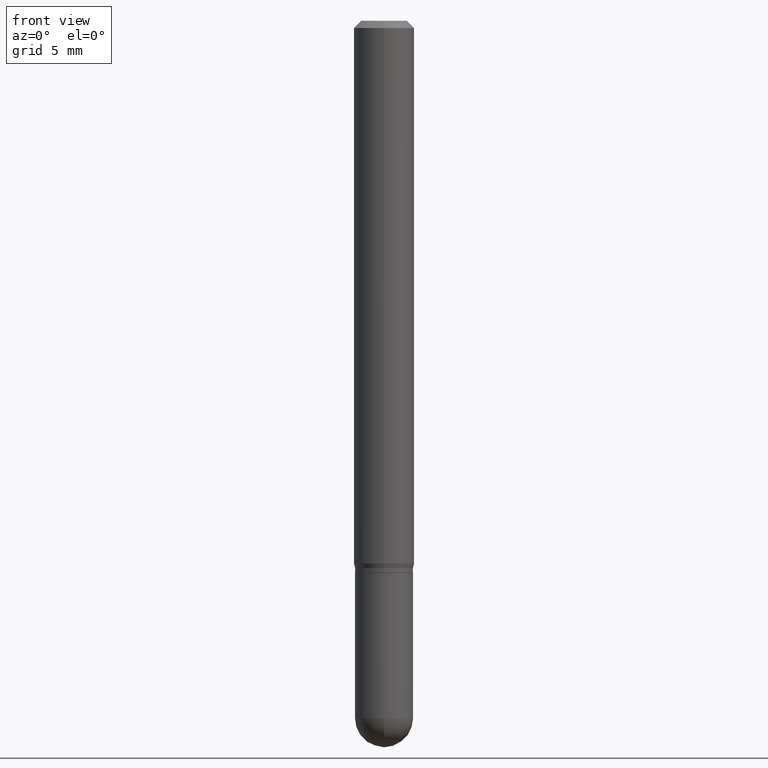
[diagram: clean part render]
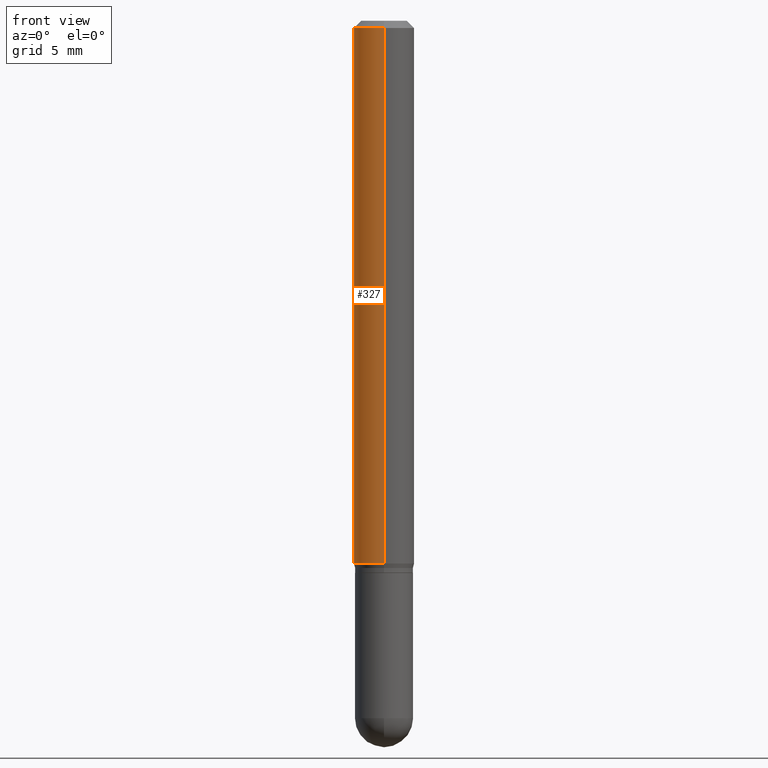
[diagram: same view with one face highlighted and labeled with its STEP entity id]
A machine part, front view. The second image highlights one B-rep face of the part: STEP entity #327.
In plain terms, the highlighted cylindrical surface (edge-blend (fillet) strip) has radius 1.5875 mm, axis along (-0, 0, 1).
Its self-contained STEP definition (entity closure, byte-faithful):
#2 = VERTEX_POINT ( 'NONE', #9 ) ;
#9 = CARTESIAN_POINT ( 'NONE',  ( -4.364351673553912750E-16, -0.06250000000000005551, -0.01499999999999984852 ) ) ;
#10 = CARTESIAN_POINT ( 'NONE',  ( -4.364351673553916201E-16, -0.06250000000000000000, 2.182223764768282415E-16 ) ) ;
#19 = DIRECTION ( 'NONE',  ( -6.982962677686265922E-15, -1.000000000000000000, 3.491558023629251863E-15 ) ) ;
#24 = CARTESIAN_POINT ( 'NONE',  ( 3.668122886227822345E-31, -5.237337035443900549E-17, -0.01500000000000006710 ) ) ;
#25 = EDGE_CURVE ( 'NONE', #505, #2, #361, .T. ) ;
#29 = DIRECTION ( 'NONE',  ( -2.445415257485203862E-29, 3.491558023629251863E-15, 1.000000000000000000 ) ) ;
#31 = CARTESIAN_POINT ( 'NONE',  ( -4.364351673553640100E-16, -0.06250000000000388578, -1.120669872981078452 ) ) ;
#42 = EDGE_CURVE ( 'NONE', #473, #2, #133, .T. ) ;
#52 = EDGE_CURVE ( 'NONE', #359, #473, #369, .T. ) ;
#56 = AXIS2_PLACEMENT_3D ( 'NONE', #448, #376, #212 ) ;
#63 = DIRECTION ( 'NONE',  ( -6.982962677686265922E-15, -1.000000000000000000, 3.483106191921935554E-15 ) ) ;
#99 = AXIS2_PLACEMENT_3D ( 'NONE', #380, #29, #19 ) ;
#133 = CIRCLE ( 'NONE', #475, 0.06250000000000000000 ) ;
#135 = CARTESIAN_POINT ( 'NONE',  ( 4.440892098500901277E-16, 0.06249999999999995143, -0.01500000000000028394 ) ) ;
#149 = ORIENTED_EDGE ( 'NONE', *, *, #52, .F. ) ;
#160 = ORIENTED_EDGE ( 'NONE', *, *, #42, .F. ) ;
#167 = DIRECTION ( 'NONE',  ( -2.445415257485203862E-29, 3.491558023629251863E-15, 1.000000000000000000 ) ) ;
#212 = DIRECTION ( 'NONE',  ( -6.982962677686265922E-15, -1.000000000000000000, 4.370956789862821150E-15 ) ) ;
#223 = CARTESIAN_POINT ( 'NONE',  ( 4.440892098500625669E-16, 0.06250000000000000000, -2.182223764768282415E-16 ) ) ;
#247 = EDGE_LOOP ( 'NONE', ( #149, #429, #490, #160 ) ) ;
#251 = VECTOR ( 'NONE', #459, 39.37007874015748143 ) ;
#252 = CIRCLE ( 'NONE', #56, 0.06250000000000000000 ) ;
#256 = CARTESIAN_POINT ( 'NONE',  ( 4.440892098500901277E-16, 0.06249999999999610728, -1.120669872981078896 ) ) ;
#263 = CYLINDRICAL_SURFACE ( 'NONE', #99, 0.06250000000000000000 ) ;
#315 = EDGE_CURVE ( 'NONE', #359, #505, #252, .T. ) ;
#327 = ADVANCED_FACE ( 'NONE', ( #503 ), #263, .T. ) ;
#359 = VERTEX_POINT ( 'NONE', #256 ) ;
#361 = LINE ( 'NONE', #10, #466 ) ;
#369 = LINE ( 'NONE', #223, #251 ) ;
#376 = DIRECTION ( 'NONE',  ( -2.445415257485203862E-29, 3.491558023629251863E-15, 1.000000000000000000 ) ) ;
#380 = CARTESIAN_POINT ( 'NONE',  ( 0.000000000000000000, 0.000000000000000000, 0.000000000000000000 ) ) ;
#429 = ORIENTED_EDGE ( 'NONE', *, *, #315, .T. ) ;
#448 = CARTESIAN_POINT ( 'NONE',  ( 2.740503205991935058E-29, -3.912883886846660154E-15, -1.120669872981078674 ) ) ;
#459 = DIRECTION ( 'NONE',  ( -2.445415257485203862E-29, 3.491558023629251863E-15, 1.000000000000000000 ) ) ;
#466 = VECTOR ( 'NONE', #167, 39.37007874015748143 ) ;
#473 = VERTEX_POINT ( 'NONE', #135 ) ;
#475 = AXIS2_PLACEMENT_3D ( 'NONE', #24, #493, #63 ) ;
#490 = ORIENTED_EDGE ( 'NONE', *, *, #25, .T. ) ;
#493 = DIRECTION ( 'NONE',  ( -2.445415257485203862E-29, 3.491558023629251863E-15, 1.000000000000000000 ) ) ;
#503 = FACE_OUTER_BOUND ( 'NONE', #247, .T. ) ;
#505 = VERTEX_POINT ( 'NONE', #31 ) ;